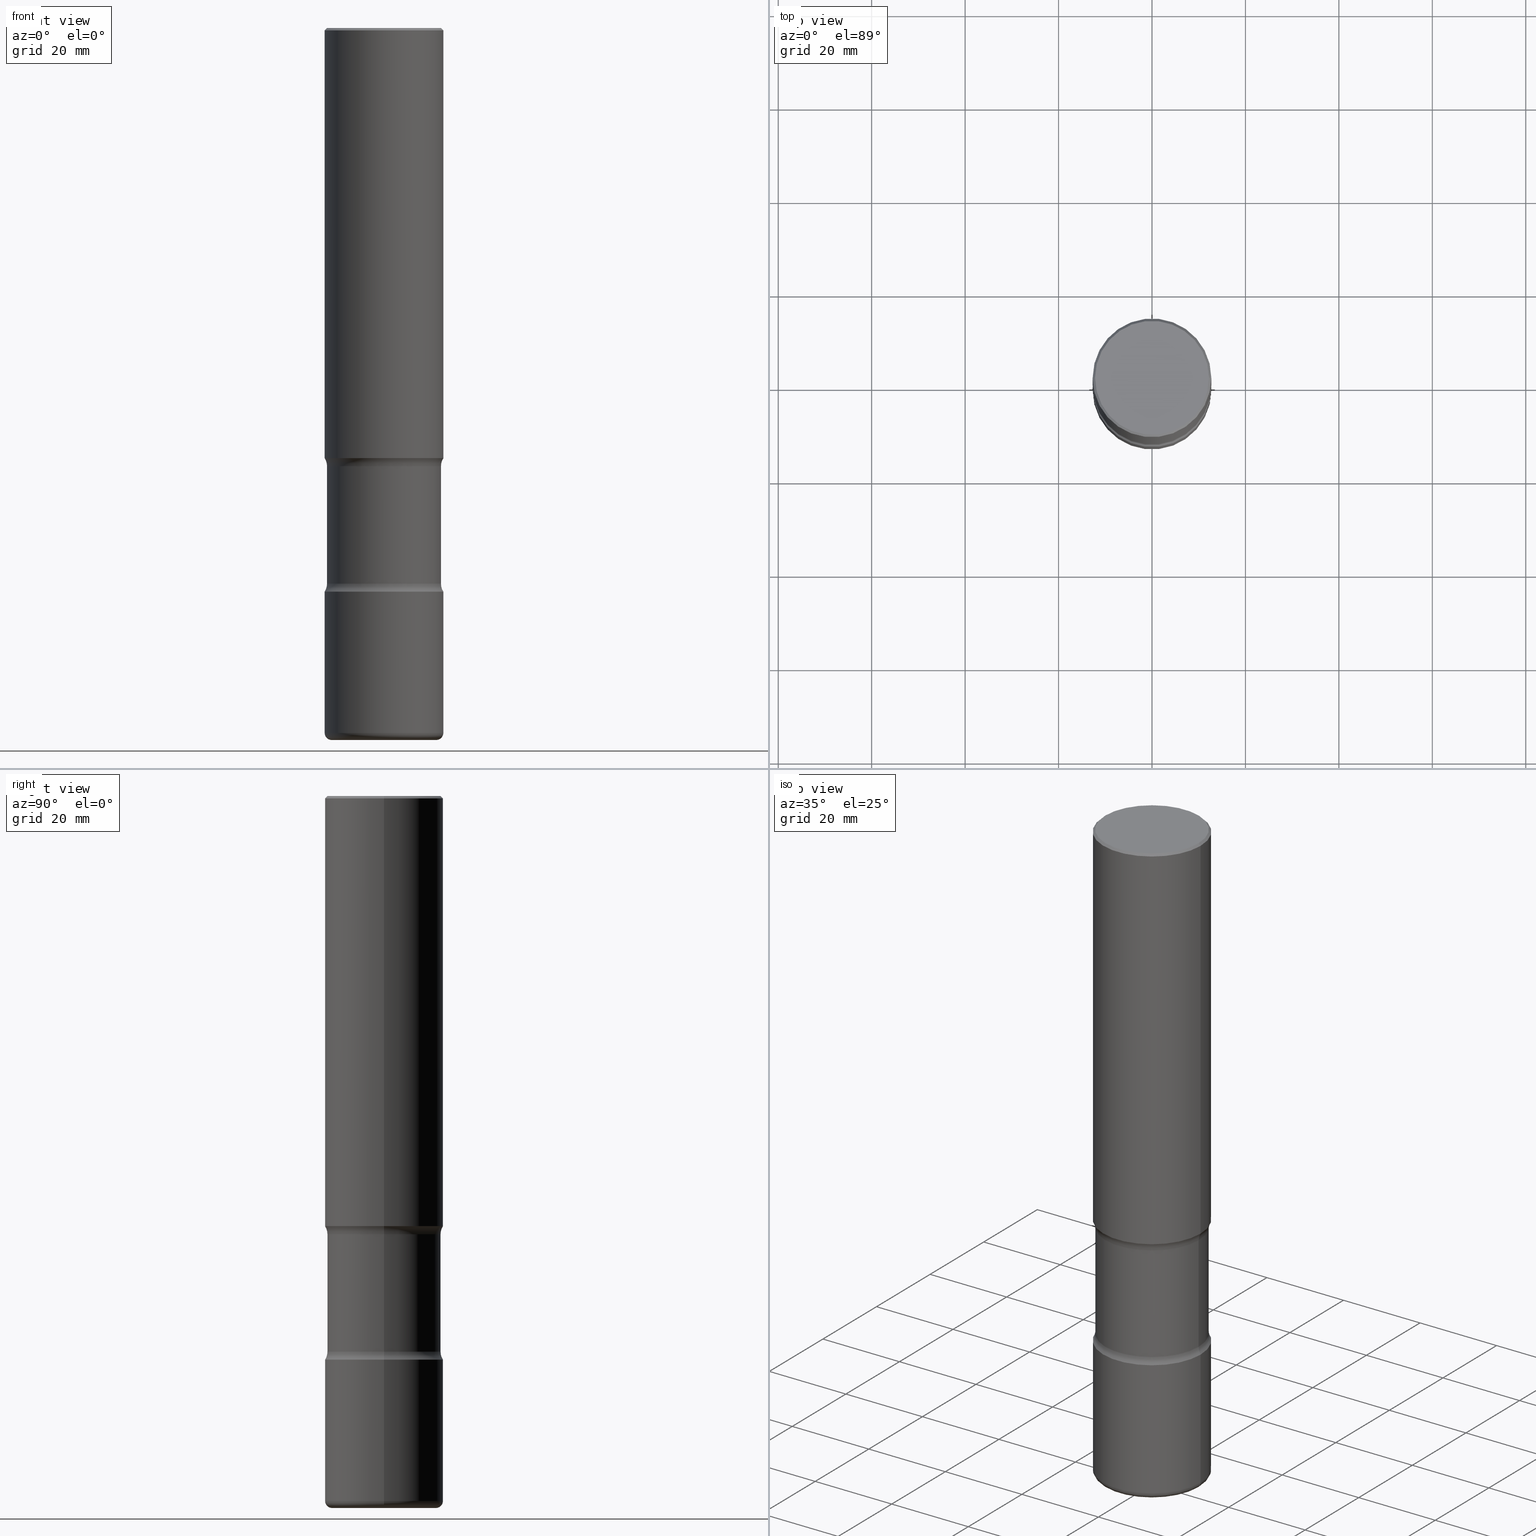
[diagram: canonical four-view strip — front | top / right | iso, engineering-drawing reading convention]
A machine part, canonical four-view strip (front | top / right | iso — engineering-drawing reading convention). The complete STEP part file that produces these views, byte-faithful:
ISO-10303-21;
HEADER;
FILE_DESCRIPTION (( 'STEP AP203' ),
    '1' );
FILE_NAME ('32868.STEP',
    '2023-03-11T07:09:18',
    ( '' ),
    ( '' ),
    'SwSTEP 2.0',
    'SolidWorks 2022',
    '' );
FILE_SCHEMA (( 'CONFIG_CONTROL_DESIGN' ));
ENDSEC;

DATA;
#1 = EDGE_LOOP ( 'NONE', ( #442, #177 ) ) ;
#2 = DIRECTION ( 'NONE',  ( -2.445468806185136877E-29, 3.491481338843145188E-15, 1.000000000000000000 ) ) ;
#3 = ADVANCED_FACE ( 'NONE', ( #9 ), #128, .F. ) ;
#4 = CARTESIAN_POINT ( 'NONE',  ( 4.890937612370299433E-31, -6.982962677686328587E-17, -0.02000000000000010797 ) ) ;
#5 = FACE_OUTER_BOUND ( 'NONE', #657, .T. ) ;
#6 = VECTOR ( 'NONE', #91, 39.37007874015748143 ) ;
#7 = AXIS2_PLACEMENT_3D ( 'NONE', #262, #574, #15 ) ;
#8 = ADVANCED_FACE ( 'NONE', ( #369 ), #194, .T. ) ;
#9 = FACE_OUTER_BOUND ( 'NONE', #359, .T. ) ;
#10 = CARTESIAN_POINT ( 'NONE',  ( 0.4799999999999999267, -1.969955465909476825E-14, -4.682176700168747985 ) ) ;
#11 = DESIGN_CONTEXT ( 'detailed design', #740, 'design' ) ;
#12 = PERSON_AND_ORGANIZATION ( #448, #115 ) ;
#13 = CARTESIAN_POINT ( 'NONE',  ( 8.864824422421122405E-29, -1.265661985330640574E-14, -3.625000000000000888 ) ) ;
#14 = CARTESIAN_POINT ( 'NONE',  ( -0.6049999999999998712, -8.668731219005799123E-15, -3.692823299831254236 ) ) ;
#15 = DIRECTION ( 'NONE',  ( -1.000000000000000000, 6.982962677686265922E-15, -4.876176775795935793E-29 ) ) ;
#16 = EDGE_CURVE ( 'NONE', #723, #236, #380, .T. ) ;
#17 = CIRCLE ( 'NONE', #129, 0.1250000000000000278 ) ;
#18 =( GEOMETRIC_REPRESENTATION_CONTEXT ( 3 ) GLOBAL_UNCERTAINTY_ASSIGNED_CONTEXT ( ( #528 ) ) GLOBAL_UNIT_ASSIGNED_CONTEXT ( ( #237, #188, #620 ) ) REPRESENTATION_CONTEXT ( 'NONE', 'WORKASPACE' ) );
#19 = DIRECTION ( 'NONE',  ( -2.445468806185136597E-29, 3.491481338843145583E-15, 1.000000000000000000 ) ) ;
#20 = CARTESIAN_POINT ( 'NONE',  ( 1.463950775264360242E-28, -2.090133719920167302E-14, -5.986380899898220420 ) ) ;
#21 = CARTESIAN_POINT ( 'NONE',  ( 1.145011706530952997E-28, -1.634773257380536149E-14, -4.682176700168747985 ) ) ;
#22 = CYLINDRICAL_SURFACE ( 'NONE', #405, 0.4799999999999998712 ) ;
#23 = FACE_OUTER_BOUND ( 'NONE', #138, .T. ) ;
#24 = CARTESIAN_POINT ( 'NONE',  ( 1.467281283711081958E-28, -2.094888803305887271E-14, -6.000000000000000888 ) ) ;
#25 = EDGE_CURVE ( 'NONE', #494, #723, #437, .T. ) ;
#26 = APPROVAL ( #148, 'UNSPECIFIED' ) ;
#27 = DIRECTION ( 'NONE',  ( 1.000000000000000000, -6.982962677686266711E-15, 4.876176775795935793E-29 ) ) ;
#28 = CARTESIAN_POINT ( 'NONE',  ( 0.5000000000000000000, -2.007601769834807675E-14, -4.750000000000000000 ) ) ;
#29 = EDGE_LOOP ( 'NONE', ( #607, #663, #432, #733 ) ) ;
#30 = CARTESIAN_POINT ( 'NONE',  ( 1.145011706530952997E-28, -1.634773257380536149E-14, -4.682176700168747985 ) ) ;
#31 = EDGE_CURVE ( 'NONE', #492, #473, #640, .T. ) ;
#32 = EDGE_LOOP ( 'NONE', ( #552, #567, #670, #726 ) ) ;
#33 = DIRECTION ( 'NONE',  ( 1.000000000000000000, -6.982962677686263555E-15, 4.883557194083111780E-29 ) ) ;
#34 = DIRECTION ( 'NONE',  ( 0.7071067811865464625, -7.319954787623252890E-15, -0.7071067811865485719 ) ) ;
#35 = EDGE_CURVE ( 'NONE', #75, #300, #134, .T. ) ;
#36 = ORIENTED_EDGE ( 'NONE', *, *, #518, .F. ) ;
#37 = ORIENTED_EDGE ( 'NONE', *, *, #238, .T. ) ;
#38 = CARTESIAN_POINT ( 'NONE',  ( 8.864824422421122405E-29, -1.265661985330640574E-14, -3.625000000000000888 ) ) ;
#39 = AXIS2_PLACEMENT_3D ( 'NONE', #418, #425, #358 ) ;
#40 = CARTESIAN_POINT ( 'NONE',  ( 1.161597682937940108E-28, -1.658453635950494339E-14, -4.750000000000000000 ) ) ;
#41 = CIRCLE ( 'NONE', #579, 0.4400000000000000022 ) ;
#42 = ORIENTED_EDGE ( 'NONE', *, *, #413, .F. ) ;
#43 = ORIENTED_EDGE ( 'NONE', *, *, #547, .T. ) ;
#44 =( LENGTH_UNIT ( ) NAMED_UNIT ( * ) SI_UNIT ( $, .METRE. ) );
#45 = CARTESIAN_POINT ( 'NONE',  ( 4.890937612370299433E-31, -6.982962677686328587E-17, -0.02000000000000010797 ) ) ;
#46 = EDGE_LOOP ( 'NONE', ( #299, #597, #252, #731 ) ) ;
#47 = EDGE_CURVE ( 'NONE', #728, #236, #622, .T. ) ;
#48 = ADVANCED_FACE ( 'NONE', ( #563 ), #289, .T. ) ;
#49 = EDGE_LOOP ( 'NONE', ( #141, #78 ) ) ;
#50 = DIRECTION ( 'NONE',  ( 2.445468806185136597E-29, -3.491481338843145583E-15, -1.000000000000000000 ) ) ;
#51 = CARTESIAN_POINT ( 'NONE',  ( 9.030684186490993510E-29, -1.289342363900598922E-14, -3.692823299831254236 ) ) ;
#52 = VERTEX_POINT ( 'NONE', #150 ) ;
#53 = ORIENTED_EDGE ( 'NONE', *, *, #374, .F. ) ;
#54 = FACE_OUTER_BOUND ( 'NONE', #535, .T. ) ;
#55 = AXIS2_PLACEMENT_3D ( 'NONE', #88, #220, #387 ) ;
#56 = EDGE_LOOP ( 'NONE', ( #240, #408, #789 ) ) ;
#57 = VECTOR ( 'NONE', #636, 39.37007874015748143 ) ;
#58 = CC_DESIGN_APPROVAL ( #26, ( #197 ) ) ;
#59 = EDGE_CURVE ( 'NONE', #658, #695, #266, .T. ) ;
#60 = PERSON_AND_ORGANIZATION_ROLE ( 'design_supplier' ) ;
#61 = CARTESIAN_POINT ( 'NONE',  ( 4.890937612370299433E-31, -6.982962677686328587E-17, -0.02000000000000010797 ) ) ;
#62 = CARTESIAN_POINT ( 'NONE',  ( 0.000000000000000000, 0.000000000000000000, 0.000000000000000000 ) ) ;
#63 = EDGE_CURVE ( 'NONE', #355, #236, #643, .T. ) ;
#64 = CARTESIAN_POINT ( 'NONE',  ( -0.4999999999999996114, 3.421651712066267296E-15, -0.02000000000000010797 ) ) ;
#65 = DIRECTION ( 'NONE',  ( -1.000000000000000000, 6.982962677686266711E-15, 0.000000000000000000 ) ) ;
#66 = ADVANCED_FACE ( 'NONE', ( #585 ), #22, .T. ) ;
#67 = ADVANCED_FACE ( 'NONE', ( #274 ), #588, .F. ) ;
#68 = DIRECTION ( 'NONE',  ( 0.000000000000000000, 0.000000000000000000, 1.000000000000000000 ) ) ;
#69 = ORIENTED_EDGE ( 'NONE', *, *, #321, .T. ) ;
#70 = DIRECTION ( 'NONE',  ( -6.982962677686266711E-15, -1.000000000000000000, 3.491481338843145583E-15 ) ) ;
#71 = AXIS2_PLACEMENT_3D ( 'NONE', #777, #222, #467 ) ;
#72 = AXIS2_PLACEMENT_3D ( 'NONE', #651, #98, #703 ) ;
#73 = AXIS2_PLACEMENT_3D ( 'NONE', #417, #665, #474 ) ;
#74 = CALENDAR_DATE ( 2023, 11, 3 ) ;
#75 = VERTEX_POINT ( 'NONE', #265 ) ;
#76 = DIRECTION ( 'NONE',  ( -2.445468806185136597E-29, 3.491481338843145583E-15, 1.000000000000000000 ) ) ;
#77 = PERSON_AND_ORGANIZATION_ROLE ( 'design_owner' ) ;
#78 = ORIENTED_EDGE ( 'NONE', *, *, #561, .T. ) ;
#79 = FACE_OUTER_BOUND ( 'NONE', #29, .T. ) ;
#80 = CARTESIAN_POINT ( 'NONE',  ( -0.4999999999999997780, 3.552713678800499352E-15, -2.459467545127452050E-29 ) ) ;
#81 = CARTESIAN_POINT ( 'NONE',  ( -0.5000000000000000000, -1.718668547392778504E-14, -5.940000000000000391 ) ) ;
#82 = DIRECTION ( 'NONE',  ( -1.000000000000000000, 6.982962677686266711E-15, -4.883557194083112901E-29 ) ) ;
#83 = AXIS2_PLACEMENT_3D ( 'NONE', #718, #801, #598 ) ;
#84 = AXIS2_PLACEMENT_3D ( 'NONE', #376, #511, #390 ) ;
#85 = AXIS2_PLACEMENT_3D ( 'NONE', #94, #221, #166 ) ;
#86 = CC_DESIGN_APPROVAL ( #162, ( #645 ) ) ;
#87 = CARTESIAN_POINT ( 'NONE',  ( -0.5000000000000000000, -9.165138514463270812E-15, -3.625000000000000888 ) ) ;
#88 = CARTESIAN_POINT ( 'NONE',  ( 1.145011706530952997E-28, -1.634773257380536149E-14, -4.682176700168747985 ) ) ;
#89 = MANIFOLD_SOLID_BREP ( 'Body-Move/Copy2[2]', #451 ) ;
#90 = CARTESIAN_POINT ( 'NONE',  ( 8.864824422421122405E-29, -1.265661985330640574E-14, -3.625000000000000888 ) ) ;
#91 = DIRECTION ( 'NONE',  ( -2.445468806185136877E-29, 3.491481338843145188E-15, 1.000000000000000000 ) ) ;
#92 = ADVANCED_FACE ( 'NONE', ( #95 ), #341, .F. ) ;
#93 = EDGE_CURVE ( 'NONE', #635, #482, #356, .T. ) ;
#94 = CARTESIAN_POINT ( 'NONE',  ( -0.6049999999999998712, -8.594640087657383223E-15, -3.692823299831254236 ) ) ;
#95 = FACE_OUTER_BOUND ( 'NONE', #529, .T. ) ;
#96 = AXIS2_PLACEMENT_3D ( 'NONE', #13, #328, #632 ) ;
#97 = AXIS2_PLACEMENT_3D ( 'NONE', #30, #409, #33 ) ;
#98 = DIRECTION ( 'NONE',  ( -2.445468806185136597E-29, 3.491481338843145583E-15, 1.000000000000000000 ) ) ;
#99 = FACE_OUTER_BOUND ( 'NONE', #363, .T. ) ;
#100 = CIRCLE ( 'NONE', #775, 0.1250000000000000278 ) ;
#101 = ORIENTED_EDGE ( 'NONE', *, *, #722, .T. ) ;
#102 = CARTESIAN_POINT ( 'NONE',  ( 9.030684186490993510E-29, -1.289342363900598922E-14, -3.692823299831254236 ) ) ;
#103 = EDGE_CURVE ( 'NONE', #473, #492, #318, .T. ) ;
#104 = DIRECTION ( 'NONE',  ( -2.445468806185136597E-29, 3.491481338843145583E-15, 1.000000000000000000 ) ) ;
#105 = ORIENTED_EDGE ( 'NONE', *, *, #248, .F. ) ;
#106 = ORIENTED_EDGE ( 'NONE', *, *, #214, .T. ) ;
#107 = CYLINDRICAL_SURFACE ( 'NONE', #231, 0.4799999999999998712 ) ;
#108 = CARTESIAN_POINT ( 'NONE',  ( -0.4999999999999996114, 3.421651712066267296E-15, -0.02000000000000010797 ) ) ;
#109 = VERTEX_POINT ( 'NONE', #333 ) ;
#110 = ORIENTED_EDGE ( 'NONE', *, *, #189, .F. ) ;
#111 = DIRECTION ( 'NONE',  ( -2.445468806185136597E-29, 3.491481338843145583E-15, 1.000000000000000000 ) ) ;
#112 = FACE_OUTER_BOUND ( 'NONE', #559, .T. ) ;
#113 = CONICAL_SURFACE ( 'NONE', #739, 1127.411546571505596, 1.535889741755010807 ) ;
#114 = EDGE_LOOP ( 'NONE', ( #601, #37 ) ) ;
#115 = ORGANIZATION ( 'UNSPECIFIED', 'UNSPECIFIED', '' ) ;
#116 = ORIENTED_EDGE ( 'NONE', *, *, #569, .T. ) ;
#117 = DIRECTION ( 'NONE',  ( -1.000000000000000000, 7.105427357600993970E-15, 0.000000000000000000 ) ) ;
#118 = PRODUCT ( '32868', '32868', '', ( #324 ) ) ;
#119 = ORIENTED_EDGE ( 'NONE', *, *, #47, .T. ) ;
#120 = DIRECTION ( 'NONE',  ( -1.000000000000000000, 6.982962677686266711E-15, -4.883557194083112901E-29 ) ) ;
#121 = DIRECTION ( 'NONE',  ( 7.105427357601001859E-15, 1.000000000000000000, -3.491481338843145583E-15 ) ) ;
#122 = ORIENTED_EDGE ( 'NONE', *, *, #238, .F. ) ;
#123 = EDGE_LOOP ( 'NONE', ( #69, #613 ) ) ;
#124 = DIRECTION ( 'NONE',  ( -6.982962677686266711E-15, -1.000000000000000000, 3.491481338843145583E-15 ) ) ;
#125 = ORIENTED_EDGE ( 'NONE', *, *, #304, .F. ) ;
#126 = ADVANCED_FACE ( 'NONE', ( #153 ), #510, .T. ) ;
#127 = LENGTH_MEASURE_WITH_UNIT ( LENGTH_MEASURE( 0.02539999999999999897 ), #44 );
#128 = PLANE ( 'NONE',  #96 ) ;
#129 = AXIS2_PLACEMENT_3D ( 'NONE', #483, #121, #230 ) ;
#130 = AXIS2_PLACEMENT_3D ( 'NONE', #746, #316, #452 ) ;
#131 = APPROVAL_PERSON_ORGANIZATION ( #502, #162, #209 ) ;
#132 = ADVANCED_FACE ( 'NONE', ( #527 ), #639, .T. ) ;
#133 = PERSON_AND_ORGANIZATION_ROLE ( 'classification_officer' ) ;
#134 = LINE ( 'NONE', #758, #226 ) ;
#135 = ADVANCED_FACE ( 'NONE', ( #515 ), #334, .F. ) ;
#136 = CARTESIAN_POINT ( 'NONE',  ( -0.4799999999999999267, -1.298447506143066159E-14, -4.682176700168747985 ) ) ;
#137 = APPROVAL_ROLE ( '' ) ;
#138 = EDGE_LOOP ( 'NONE', ( #298, #169, #364 ) ) ;
#139 = CARTESIAN_POINT ( 'NONE',  ( 9.030684186490993510E-29, -1.289342363900598922E-14, -3.692823299831254236 ) ) ;
#140 = PERSON_AND_ORGANIZATION ( #448, #115 ) ;
#141 = ORIENTED_EDGE ( 'NONE', *, *, #701, .T. ) ;
#142 = DIRECTION ( 'NONE',  ( -1.000000000000000000, 6.860497997771523674E-15, 0.000000000000000000 ) ) ;
#143 = VECTOR ( 'NONE', #205, 39.37007874015748143 ) ;
#144 = AXIS2_PLACEMENT_3D ( 'NONE', #714, #646, #460 ) ;
#145 = APPLICATION_PROTOCOL_DEFINITION ( 'international standard', 'config_control_design', 1994, #310 ) ;
#146 = CARTESIAN_POINT ( 'NONE',  ( 1.145011706530952997E-28, -1.634773257380536149E-14, -4.682176700168747985 ) ) ;
#147 = CARTESIAN_POINT ( 'NONE',  ( -3.131554243005659264E-46, 4.471029511141341874E-32, 1.280553747030123384E-17 ) ) ;
#148 = APPROVAL_STATUS ( 'not_yet_approved' ) ;
#149 = DIRECTION ( 'NONE',  ( -1.000000000000000000, 6.982962677686266711E-15, 0.000000000000000000 ) ) ;
#150 = CARTESIAN_POINT ( 'NONE',  ( 0.5000000000000000000, -1.608686885219216995E-14, -3.625000000000000888 ) ) ;
#151 = EDGE_CURVE ( 'NONE', #164, #661, #784, .T. ) ;
#152 = DIRECTION ( 'NONE',  ( 1.000000000000000000, -6.982962677686262766E-15, 0.000000000000000000 ) ) ;
#153 = FACE_OUTER_BOUND ( 'NONE', #543, .T. ) ;
#154 = AXIS2_PLACEMENT_3D ( 'NONE', #606, #780, #403 ) ;
#155 = EDGE_CURVE ( 'NONE', #480, #489, #330, .T. ) ;
#156 = DIRECTION ( 'NONE',  ( -2.445468806185136597E-29, 3.491481338843145583E-15, 1.000000000000000000 ) ) ;
#157 = CARTESIAN_POINT ( 'NONE',  ( 1.062394972252853083E-27, 1.101798156628259290E-13, -6.000000000000001776 ) ) ;
#158 = DIRECTION ( 'NONE',  ( 2.445468806185136877E-29, -3.491481338843145188E-15, -1.000000000000000000 ) ) ;
#159 = DIRECTION ( 'NONE',  ( 1.000000000000000000, -6.982962677686270655E-15, 4.883557194083114583E-29 ) ) ;
#160 = CYLINDRICAL_SURFACE ( 'NONE', #228, 0.4999999999999997780 ) ;
#161 = CARTESIAN_POINT ( 'NONE',  ( 0.4999999999999996114, -3.500078625662626318E-15, -0.02000000000000010797 ) ) ;
#162 = APPROVAL ( #449, 'UNSPECIFIED' ) ;
#163 = AXIS2_PLACEMENT_3D ( 'NONE', #51, #171, #302 ) ;
#164 = VERTEX_POINT ( 'NONE', #28 ) ;
#165 = AXIS2_PLACEMENT_3D ( 'NONE', #399, #649, #463 ) ;
#166 = DIRECTION ( 'NONE',  ( -1.000000000000000000, 7.105427357601001859E-15, 0.000000000000000000 ) ) ;
#167 = CARTESIAN_POINT ( 'NONE',  ( 1.161597682937940108E-28, -1.658453635950494339E-14, -4.750000000000000000 ) ) ;
#168 = ORIENTED_EDGE ( 'NONE', *, *, #496, .F. ) ;
#169 = ORIENTED_EDGE ( 'NONE', *, *, #628, .T. ) ;
#170 = DIRECTION ( 'NONE',  ( -2.445468806185136597E-29, 3.491481338843145583E-15, 1.000000000000000000 ) ) ;
#171 = DIRECTION ( 'NONE',  ( -2.445468806185136597E-29, 3.491481338843145583E-15, 1.000000000000000000 ) ) ;
#172 = ORIENTED_EDGE ( 'NONE', *, *, #214, .F. ) ;
#173 = CARTESIAN_POINT ( 'NONE',  ( -0.4400000000000000022, -1.761301111538384237E-14, -5.940000000000000391 ) ) ;
#174 = ORIENTED_EDGE ( 'NONE', *, *, #410, .T. ) ;
#175 = CARTESIAN_POINT ( 'NONE',  ( -0.4799999999999995381, 3.386736898677836041E-15, 1.280553747027767124E-17 ) ) ;
#176 = DIRECTION ( 'NONE',  ( -6.982962677686266711E-15, -1.000000000000000000, 3.491481338843145583E-15 ) ) ;
#177 = ORIENTED_EDGE ( 'NONE', *, *, #404, .T. ) ;
#178 = ORIENTED_EDGE ( 'NONE', *, *, #569, .F. ) ;
#179 = ADVANCED_FACE ( 'NONE', ( #768, #708 ), #770, .F. ) ;
#180 = CARTESIAN_POINT ( 'NONE',  ( 8.864824422421122405E-29, -1.265661985330640574E-14, -3.625000000000000888 ) ) ;
#181 = AXIS2_PLACEMENT_3D ( 'NONE', #712, #398, #82 ) ;
#182 = DIRECTION ( 'NONE',  ( 2.445468806185136597E-29, -3.491481338843145583E-15, -1.000000000000000000 ) ) ;
#183 = TOROIDAL_SURFACE ( 'NONE', #277, 0.6049999999999998712, 0.1250000000000001110 ) ;
#184 = CIRCLE ( 'NONE', #311, 0.5000000000000000000 ) ;
#185 = EDGE_CURVE ( 'NONE', #109, #489, #435, .T. ) ;
#186 = ORIENTED_EDGE ( 'NONE', *, *, #16, .T. ) ;
#187 = ORIENTED_EDGE ( 'NONE', *, *, #235, .T. ) ;
#188 =( NAMED_UNIT ( * ) PLANE_ANGLE_UNIT ( ) SI_UNIT ( $, .RADIAN. ) );
#189 = EDGE_CURVE ( 'NONE', #695, #489, #433, .T. ) ;
#190 = ORIENTED_EDGE ( 'NONE', *, *, #443, .T. ) ;
#191 = EDGE_LOOP ( 'NONE', ( #503, #593, #741, #250 ) ) ;
#192 = EDGE_LOOP ( 'NONE', ( #556, #116, #174, #53 ) ) ;
#193 = DIRECTION ( 'NONE',  ( -2.445468806185136597E-29, 3.491481338843145583E-15, 1.000000000000000000 ) ) ;
#194 = TOROIDAL_SURFACE ( 'NONE', #207, 0.4400000000000000022, 0.05999999999999994227 ) ;
#195 = FACE_OUTER_BOUND ( 'NONE', #450, .T. ) ;
#196 = VECTOR ( 'NONE', #158, 39.37007874015748143 ) ;
#197 = PRODUCT_DEFINITION_FORMATION_WITH_SPECIFIED_SOURCE ( 'ANY', '', #118, .NOT_KNOWN. ) ;
#198 = CC_DESIGN_APPROVAL ( #497, ( #603 ) ) ;
#199 = APPROVAL_STATUS ( 'not_yet_approved' ) ;
#200 = DIRECTION ( 'NONE',  ( 1.000000000000000000, -6.982962677686265133E-15, 0.000000000000000000 ) ) ;
#201 = CARTESIAN_POINT ( 'NONE',  ( 0.5000000000000000000, -1.614810119214953752E-14, -3.625000000000000888 ) ) ;
#202 = CARTESIAN_POINT ( 'NONE',  ( 1.452608470873971255E-28, -2.073939915272828597E-14, -5.940000000000000391 ) ) ;
#203 = DIRECTION ( 'NONE',  ( -2.445468806185136597E-29, 3.491481338843145583E-15, 1.000000000000000000 ) ) ;
#204 = EDGE_CURVE ( 'NONE', #489, #695, #786, .T. ) ;
#205 = DIRECTION ( 'NONE',  ( -0.7071067811865464625, 2.468850131082245622E-15, -0.7071067811865485719 ) ) ;
#206 = CYLINDRICAL_SURFACE ( 'NONE', #804, 0.5000000000000000000 ) ;
#207 = AXIS2_PLACEMENT_3D ( 'NONE', #202, #506, #446 ) ;
#208 = CIRCLE ( 'NONE', #772, 0.4799999999999995381 ) ;
#209 = APPROVAL_ROLE ( '' ) ;
#210 = DIRECTION ( 'NONE',  ( 1.000000000000000000, -6.982962677686266711E-15, 4.876036955247133888E-29 ) ) ;
#211 = CARTESIAN_POINT ( 'NONE',  ( 1.452608470873971255E-28, -2.073939915272828597E-14, -5.940000000000000391 ) ) ;
#212 = DIRECTION ( 'NONE',  ( -2.445468806185136597E-29, 3.491481338843145583E-15, 1.000000000000000000 ) ) ;
#213 = DIRECTION ( 'NONE',  ( -1.000000000000000000, 6.982962677686266711E-15, -4.883557194083112901E-29 ) ) ;
#214 = EDGE_CURVE ( 'NONE', #799, #723, #592, .T. ) ;
#215 = CARTESIAN_POINT ( 'NONE',  ( 0.4799999999999998712, -2.419437623813200892E-14, -5.986380899898220420 ) ) ;
#216 = DIRECTION ( 'NONE',  ( -1.000000000000000000, 6.982962677686269866E-15, 0.000000000000000000 ) ) ;
#217 = AXIS2_PLACEMENT_3D ( 'NONE', #391, #650, #522 ) ;
#218 = AXIS2_PLACEMENT_3D ( 'NONE', #173, #662, #117 ) ;
#219 = DIRECTION ( 'NONE',  ( -2.445468806185136877E-29, 3.491481338843145188E-15, 1.000000000000000000 ) ) ;
#220 = DIRECTION ( 'NONE',  ( -2.445468806185136597E-29, 3.491481338843145583E-15, 1.000000000000000000 ) ) ;
#221 = DIRECTION ( 'NONE',  ( 7.105427357601001859E-15, 1.000000000000000000, -3.491481338843145583E-15 ) ) ;
#222 = DIRECTION ( 'NONE',  ( -6.982962677686266711E-15, -1.000000000000000000, 3.491481338843145583E-15 ) ) ;
#223 = ORIENTED_EDGE ( 'NONE', *, *, #666, .T. ) ;
#224 = DIRECTION ( 'NONE',  ( 1.000000000000000000, -6.982962677686270655E-15, 0.000000000000000000 ) ) ;
#225 = CARTESIAN_POINT ( 'NONE',  ( 0.4799999999999998157, -1.613666576506424596E-14, -3.692823299831254236 ) ) ;
#226 = VECTOR ( 'NONE', #688, 39.37007874015748143 ) ;
#227 = ORIENTED_EDGE ( 'NONE', *, *, #47, .F. ) ;
#228 = AXIS2_PLACEMENT_3D ( 'NONE', #586, #397, #27 ) ;
#229 = DIRECTION ( 'NONE',  ( 1.000000000000000000, -6.982962677686266711E-15, 0.000000000000000000 ) ) ;
#230 = DIRECTION ( 'NONE',  ( -1.000000000000000000, 7.105427357600994759E-15, 0.000000000000000000 ) ) ;
#231 = AXIS2_PLACEMENT_3D ( 'NONE', #286, #353, #800 ) ;
#232 = VERTEX_POINT ( 'NONE', #612 ) ;
#233 = DIRECTION ( 'NONE',  ( -1.000000000000000000, 6.982962677686266711E-15, 0.000000000000000000 ) ) ;
#234 = ORIENTED_EDGE ( 'NONE', *, *, #571, .F. ) ;
#235 = EDGE_CURVE ( 'NONE', #236, #723, #394, .T. ) ;
#236 = VERTEX_POINT ( 'NONE', #108 ) ;
#237 =( CONVERSION_BASED_UNIT ( 'INCH', #127 ) LENGTH_UNIT ( ) NAMED_UNIT ( #766 ) );
#238 = EDGE_CURVE ( 'NONE', #661, #164, #242, .T. ) ;
#239 = DIRECTION ( 'NONE',  ( -2.445468806185136597E-29, 3.491481338843145583E-15, 1.000000000000000000 ) ) ;
#240 = ORIENTED_EDGE ( 'NONE', *, *, #628, .F. ) ;
#241 = DIRECTION ( 'NONE',  ( 1.000000000000000000, -6.982962677686266711E-15, 0.000000000000000000 ) ) ;
#242 = CIRCLE ( 'NONE', #705, 0.5000000000000000000 ) ;
#243 = DIRECTION ( 'NONE',  ( -2.445468806185136597E-29, 3.491481338843145583E-15, 1.000000000000000000 ) ) ;
#244 = VECTOR ( 'NONE', #343, 39.37007874015748143 ) ;
#245 = CC_DESIGN_SECURITY_CLASSIFICATION ( #603, ( #197 ) ) ;
#246 = EDGE_LOOP ( 'NONE', ( #249, #626, #303, #261 ) ) ;
#247 = CARTESIAN_POINT ( 'NONE',  ( -0.5000000000000000000, -9.103906174505904815E-15, -3.625000000000000888 ) ) ;
#248 = EDGE_CURVE ( 'NONE', #488, #717, #498, .T. ) ;
#249 = ORIENTED_EDGE ( 'NONE', *, *, #31, .F. ) ;
#250 = ORIENTED_EDGE ( 'NONE', *, *, #185, .F. ) ;
#251 = APPLICATION_PROTOCOL_DEFINITION ( 'international standard', 'config_control_design', 1994, #740 ) ;
#252 = ORIENTED_EDGE ( 'NONE', *, *, #713, .T. ) ;
#253 = APPROVAL_DATE_TIME ( #744, #162 ) ;
#254 = DIRECTION ( 'NONE',  ( -2.445468806185136597E-29, 3.491481338843145583E-15, 1.000000000000000000 ) ) ;
#255 = CIRCLE ( 'NONE', #629, 0.05999999999999997696 ) ;
#256 = CARTESIAN_POINT ( 'NONE',  ( 1.463950775264360242E-28, -2.090133719920167302E-14, -5.986380899898220420 ) ) ;
#257 = AXIS2_PLACEMENT_3D ( 'NONE', #447, #689, #142 ) ;
#258 = ORIENTED_EDGE ( 'NONE', *, *, #185, .T. ) ;
#259 = FACE_OUTER_BOUND ( 'NONE', #56, .T. ) ;
#260 = APPROVAL_ROLE ( '' ) ;
#261 = ORIENTED_EDGE ( 'NONE', *, *, #713, .F. ) ;
#262 = CARTESIAN_POINT ( 'NONE',  ( 3.351822085289404392E-15, 0.4799999999999995381, -1.669508273909557670E-15 ) ) ;
#263 = DIRECTION ( 'NONE',  ( 1.000000000000000000, 0.000000000000000000, 0.000000000000000000 ) ) ;
#264 = CARTESIAN_POINT ( 'NONE',  ( 9.030684186490993510E-29, -1.289342363900598922E-14, -3.692823299831254236 ) ) ;
#265 = CARTESIAN_POINT ( 'NONE',  ( 1.463950775264360242E-28, -2.090133719920167302E-14, -5.986380899898220420 ) ) ;
#266 = CIRCLE ( 'NONE', #217, 0.1250000000000000278 ) ;
#267 = AXIS2_PLACEMENT_3D ( 'NONE', #14, #70, #507 ) ;
#268 = TOROIDAL_SURFACE ( 'NONE', #580, 0.6049999999999999822, 0.1250000000000000278 ) ;
#269 = PLANE ( 'NONE',  #7 ) ;
#270 = DIRECTION ( 'NONE',  ( -2.445468806185136597E-29, 3.491481338843145583E-15, 1.000000000000000000 ) ) ;
#271 = ADVANCED_FACE ( 'NONE', ( #99 ), #669, .T. ) ;
#272 = EDGE_CURVE ( 'NONE', #492, #232, #17, .T. ) ;
#273 = DIRECTION ( 'NONE',  ( 2.445468806185136597E-29, -3.491481338843145583E-15, -1.000000000000000000 ) ) ;
#274 = FACE_OUTER_BOUND ( 'NONE', #732, .T. ) ;
#275 = DIRECTION ( 'NONE',  ( 2.445468806185136877E-29, -3.491481338843145188E-15, -1.000000000000000000 ) ) ;
#276 = CIRCLE ( 'NONE', #487, 0.5000000000000000000 ) ;
#277 = AXIS2_PLACEMENT_3D ( 'NONE', #102, #212, #461 ) ;
#278 = AXIS2_PLACEMENT_3D ( 'NONE', #424, #792, #478 ) ;
#279 = CARTESIAN_POINT ( 'NONE',  ( -0.4799999999999998712, -9.246014721657926556E-15, -3.625000000000000888 ) ) ;
#280 = CC_DESIGN_PERSON_AND_ORGANIZATION_ASSIGNMENT ( #384, #77, ( #118 ) ) ;
#281 = DIRECTION ( 'NONE',  ( 1.000000000000000000, -6.982962677686265922E-15, 4.876176775795935793E-29 ) ) ;
#282 = ORIENTED_EDGE ( 'NONE', *, *, #93, .F. ) ;
#283 = CARTESIAN_POINT ( 'NONE',  ( 1.452608470873971255E-28, -2.073939915272828597E-14, -5.940000000000000391 ) ) ;
#284 = CARTESIAN_POINT ( 'NONE',  ( 1.161597682937940108E-28, -1.658453635950494339E-14, -4.750000000000000000 ) ) ;
#285 = VERTEX_POINT ( 'NONE', #225 ) ;
#286 = CARTESIAN_POINT ( 'NONE',  ( 8.864824422421122405E-29, -1.265661985330640574E-14, -3.625000000000000888 ) ) ;
#287 = ORIENTED_EDGE ( 'NONE', *, *, #295, .F. ) ;
#288 = CLOSED_SHELL ( 'NONE', ( #401, #664, #755, #67, #92, #557, #135, #66 ) ) ;
#289 = CONICAL_SURFACE ( 'NONE', #471, 0.4999999999999996114, 0.7853981633974468357 ) ;
#290 = AXIS2_PLACEMENT_3D ( 'NONE', #90, #340, #584 ) ;
#291 = ORIENTED_EDGE ( 'NONE', *, *, #377, .T. ) ;
#292 = APPROVAL_PERSON_ORGANIZATION ( #313, #497, #137 ) ;
#293 = DIRECTION ( 'NONE',  ( -2.445468806185136597E-29, 3.491481338843145583E-15, 1.000000000000000000 ) ) ;
#294 = EDGE_LOOP ( 'NONE', ( #234, #491, #675, #110 ) ) ;
#295 = EDGE_CURVE ( 'NONE', #419, #232, #600, .T. ) ;
#296 = ORIENTED_EDGE ( 'NONE', *, *, #204, .T. ) ;
#297 = FACE_OUTER_BOUND ( 'NONE', #616, .T. ) ;
#298 = ORIENTED_EDGE ( 'NONE', *, *, #35, .F. ) ;
#299 = ORIENTED_EDGE ( 'NONE', *, *, #272, .F. ) ;
#300 = VERTEX_POINT ( 'NONE', #534 ) ;
#301 = CARTESIAN_POINT ( 'NONE',  ( 0.5000000000000000000, -2.423088049157142248E-14, -5.940000000000000391 ) ) ;
#302 = DIRECTION ( 'NONE',  ( 1.000000000000000000, -6.982962677686266711E-15, 0.000000000000000000 ) ) ;
#303 = ORIENTED_EDGE ( 'NONE', *, *, #496, .T. ) ;
#304 = EDGE_CURVE ( 'NONE', #482, #717, #255, .T. ) ;
#305 = ORIENTED_EDGE ( 'NONE', *, *, #426, .F. ) ;
#306 = FACE_OUTER_BOUND ( 'NONE', #486, .T. ) ;
#307 = CIRCLE ( 'NONE', #163, 0.4799999999999998157 ) ;
#308 = CIRCLE ( 'NONE', #84, 0.5000000000000000000 ) ;
#309 = ADVANCED_FACE ( 'NONE', ( #112 ), #736, .T. ) ;
#310 = APPLICATION_CONTEXT ( 'configuration controlled 3d designs of mechanical parts and assemblies' ) ;
#311 = AXIS2_PLACEMENT_3D ( 'NONE', #38, #293, #241 ) ;
#312 = ORIENTED_EDGE ( 'NONE', *, *, #455, .T. ) ;
#313 = PERSON_AND_ORGANIZATION ( #448, #115 ) ;
#314 = DIRECTION ( 'NONE',  ( 1.000000000000000000, -6.982962677686266711E-15, 0.000000000000000000 ) ) ;
#315 = ORIENTED_EDGE ( 'NONE', *, *, #547, .F. ) ;
#316 = DIRECTION ( 'NONE',  ( -2.445468806185136597E-29, 3.491481338843145583E-15, 1.000000000000000000 ) ) ;
#317 = VERTEX_POINT ( 'NONE', #362 ) ;
#318 = CIRCLE ( 'NONE', #55, 0.4799999999999999267 ) ;
#319 = CARTESIAN_POINT ( 'NONE',  ( -0.4799999999999998157, -9.541601553716582462E-15, -3.692823299831254236 ) ) ;
#320 = CONICAL_SURFACE ( 'NONE', #706, 1127.411546571505596, 1.535889741755010807 ) ;
#321 = EDGE_CURVE ( 'NONE', #109, #658, #276, .T. ) ;
#322 = VECTOR ( 'NONE', #734, 39.37007874015748143 ) ;
#323 = CC_DESIGN_DATE_AND_TIME_ASSIGNMENT ( #686, #692, ( #645 ) ) ;
#324 = MECHANICAL_CONTEXT ( 'NONE', #310, 'mechanical' ) ;
#325 = ORIENTED_EDGE ( 'NONE', *, *, #59, .F. ) ;
#326 = CARTESIAN_POINT ( 'NONE',  ( 0.5000000000000000000, -3.491481338843133355E-15, 2.438088387897967896E-29 ) ) ;
#327 = SECURITY_CLASSIFICATION_LEVEL ( 'unclassified' ) ;
#328 = DIRECTION ( 'NONE',  ( -2.438088387897960049E-29, 3.491481338843145188E-15, 1.000000000000000000 ) ) ;
#329 = CARTESIAN_POINT ( 'NONE',  ( 0.000000000000000000, 0.000000000000000000, 0.000000000000000000 ) ) ;
#330 = LINE ( 'NONE', #344, #748 ) ;
#331 = EDGE_CURVE ( 'NONE', #411, #317, #307, .T. ) ;
#332 = CARTESIAN_POINT ( 'NONE',  ( 1.467281283711082406E-28, -2.094888803305887902E-14, -6.000000000000001776 ) ) ;
#333 = CARTESIAN_POINT ( 'NONE',  ( -0.5000000000000000000, -1.309305502066180846E-14, -4.750000000000000000 ) ) ;
#334 = TOROIDAL_SURFACE ( 'NONE', #181, 0.6049999999999999822, 0.1250000000000000278 ) ;
#335 = CIRCLE ( 'NONE', #72, 0.4799999999999995381 ) ;
#336 = AXIS2_PLACEMENT_3D ( 'NONE', #724, #111, #229 ) ;
#337 = CARTESIAN_POINT ( 'NONE',  ( -0.4400000000000000022, -1.750459273482111023E-14, -6.000000000000000888 ) ) ;
#338 = CARTESIAN_POINT ( 'NONE',  ( 8.864824422421122405E-29, -1.265661985330640574E-14, -3.625000000000000888 ) ) ;
#339 = MANIFOLD_SOLID_BREP ( 'Body-Move/Copy2[3]', #747 ) ;
#340 = DIRECTION ( 'NONE',  ( 2.445468806185136597E-29, -3.491481338843145583E-15, -1.000000000000000000 ) ) ;
#341 = PLANE ( 'NONE',  #676 ) ;
#342 = ADVANCED_FACE ( 'NONE', ( #414 ), #545, .F. ) ;
#343 = DIRECTION ( 'NONE',  ( -2.445468806185136877E-29, 3.491481338843145188E-15, 1.000000000000000000 ) ) ;
#344 = CARTESIAN_POINT ( 'NONE',  ( -0.4799999999999998712, -1.754951511391226626E-14, -5.986380899898220420 ) ) ;
#345 = AXIS2_PLACEMENT_3D ( 'NONE', #40, #595, #730 ) ;
#346 = CIRCLE ( 'NONE', #218, 0.05999999999999997696 ) ;
#347 = ADVANCED_FACE ( 'NONE', ( #479 ), #382, .F. ) ;
#348 = ORIENTED_EDGE ( 'NONE', *, *, #204, .F. ) ;
#349 = FACE_OUTER_BOUND ( 'NONE', #246, .T. ) ;
#350 = ORIENTED_EDGE ( 'NONE', *, *, #443, .F. ) ;
#351 = DIRECTION ( 'NONE',  ( 1.000000000000000000, -6.982962677686265922E-15, 4.876176775795935793E-29 ) ) ;
#352 = ORIENTED_EDGE ( 'NONE', *, *, #701, .F. ) ;
#353 = DIRECTION ( 'NONE',  ( -2.445468806185136597E-29, 3.491481338843145583E-15, 1.000000000000000000 ) ) ;
#354 = DIRECTION ( 'NONE',  ( -1.000000000000000000, 6.982962677686265922E-15, -4.876176775795935793E-29 ) ) ;
#355 = VERTEX_POINT ( 'NONE', #396 ) ;
#356 = CIRCLE ( 'NONE', #652, 0.4400000000000000022 ) ;
#357 = CARTESIAN_POINT ( 'NONE',  ( 1.145011706530952997E-28, -1.634773257380536149E-14, -4.682176700168747985 ) ) ;
#358 = DIRECTION ( 'NONE',  ( 1.000000000000000000, -6.982962677686266711E-15, 0.000000000000000000 ) ) ;
#359 = EDGE_LOOP ( 'NONE', ( #546, #782 ) ) ;
#360 = EDGE_LOOP ( 'NONE', ( #178, #352, #484, #477 ) ) ;
#361 = CARTESIAN_POINT ( 'NONE',  ( 0.4799999999999999267, -1.982777848556320013E-14, -4.682176700168747985 ) ) ;
#362 = CARTESIAN_POINT ( 'NONE',  ( -0.4799999999999998157, -9.293362340931705846E-15, -3.692823299831254236 ) ) ;
#363 = EDGE_LOOP ( 'NONE', ( #287, #168 ) ) ;
#364 = ORIENTED_EDGE ( 'NONE', *, *, #404, .F. ) ;
#365 = CARTESIAN_POINT ( 'NONE',  ( 0.000000000000000000, 0.000000000000000000, 0.000000000000000000 ) ) ;
#366 = ORIENTED_EDGE ( 'NONE', *, *, #304, .T. ) ;
#367 = AXIS2_PLACEMENT_3D ( 'NONE', #157, #575, #281 ) ;
#368 = CIRCLE ( 'NONE', #257, 0.1250000000000001110 ) ;
#369 = FACE_OUTER_BOUND ( 'NONE', #532, .T. ) ;
#370 = PERSON_AND_ORGANIZATION_ROLE ( 'creator' ) ;
#371 = ORIENTED_EDGE ( 'NONE', *, *, #508, .T. ) ;
#372 = CARTESIAN_POINT ( 'NONE',  ( 0.5000000000000000000, -1.614810119214954068E-14, -3.625000000000000888 ) ) ;
#373 = COORDINATED_UNIVERSAL_TIME_OFFSET ( 5, 0, .BEHIND. ) ;
#374 = EDGE_CURVE ( 'NONE', #416, #411, #499, .T. ) ;
#375 = ORIENTED_EDGE ( 'NONE', *, *, #248, .T. ) ;
#376 = CARTESIAN_POINT ( 'NONE',  ( 8.864824422421122405E-29, -1.265661985330640574E-14, -3.625000000000000888 ) ) ;
#377 = EDGE_CURVE ( 'NONE', #635, #488, #346, .T. ) ;
#378 = DATE_AND_TIME ( #570, #525 ) ;
#379 = ORIENTED_EDGE ( 'NONE', *, *, #331, .F. ) ;
#380 = CIRCLE ( 'NONE', #565, 0.4999999999999996114 ) ;
#381 = CARTESIAN_POINT ( 'NONE',  ( 1.467281283711081958E-28, -2.094888803305887271E-14, -6.000000000000000888 ) ) ;
#382 = TOROIDAL_SURFACE ( 'NONE', #619, 0.6049999999999998712, 0.1250000000000001110 ) ;
#383 = LOCAL_TIME ( 2, 9, 18.00000000000000000, #440 ) ;
#384 = PERSON_AND_ORGANIZATION ( #448, #115 ) ;
#385 = ORIENTED_EDGE ( 'NONE', *, *, #426, .T. ) ;
#386 = CARTESIAN_POINT ( 'NONE',  ( 0.000000000000000000, 0.000000000000000000, 0.000000000000000000 ) ) ;
#387 = DIRECTION ( 'NONE',  ( 1.000000000000000000, -6.982962677686265133E-15, 0.000000000000000000 ) ) ;
#388 = ADVANCED_FACE ( 'NONE', ( #297 ), #206, .T. ) ;
#389 = PRODUCT_RELATED_PRODUCT_CATEGORY ( 'detail', '', ( #118 ) ) ;
#390 = DIRECTION ( 'NONE',  ( -1.000000000000000000, 6.982962677686266711E-15, 0.000000000000000000 ) ) ;
#391 = CARTESIAN_POINT ( 'NONE',  ( 0.6049999999999999822, -2.049833386245713884E-14, -4.682176700168747985 ) ) ;
#392 = LINE ( 'NONE', #594, #749 ) ;
#393 = DIRECTION ( 'NONE',  ( -2.445468806185136597E-29, 3.491481338843145583E-15, 1.000000000000000000 ) ) ;
#394 = CIRCLE ( 'NONE', #39, 0.4999999999999996114 ) ;
#395 = AXIS2_PLACEMENT_3D ( 'NONE', #329, #76, #633 ) ;
#396 = CARTESIAN_POINT ( 'NONE',  ( -0.5000000000000000000, -2.810511061241131620E-15, -3.625000000000000888 ) ) ;
#397 = DIRECTION ( 'NONE',  ( -2.445468806185136597E-29, 3.491481338843145583E-15, 1.000000000000000000 ) ) ;
#398 = DIRECTION ( 'NONE',  ( 2.445468806185136597E-29, -3.491481338843145583E-15, -1.000000000000000000 ) ) ;
#399 = CARTESIAN_POINT ( 'NONE',  ( 8.864824422421122405E-29, -1.265661985330640574E-14, -3.625000000000000888 ) ) ;
#400 = DIRECTION ( 'NONE',  ( 1.000000000000000000, -6.982962677686265922E-15, 0.000000000000000000 ) ) ;
#401 = ADVANCED_FACE ( 'NONE', ( #5 ), #759, .T. ) ;
#402 = LINE ( 'NONE', #279, #244 ) ;
#403 = DIRECTION ( 'NONE',  ( -1.000000000000000000, 6.982962677686265922E-15, -4.876176775795935793E-29 ) ) ;
#404 = EDGE_CURVE ( 'NONE', #300, #754, #602, .T. ) ;
#405 = AXIS2_PLACEMENT_3D ( 'NONE', #20, #464, #216 ) ;
#406 = CIRCLE ( 'NONE', #165, 0.5000000000000000000 ) ;
#407 = APPROVAL_PERSON_ORGANIZATION ( #509, #26, #260 ) ;
#408 = ORIENTED_EDGE ( 'NONE', *, *, #35, .T. ) ;
#409 = DIRECTION ( 'NONE',  ( -2.445468806185136597E-29, 3.491481338843145583E-15, 1.000000000000000000 ) ) ;
#410 = EDGE_CURVE ( 'NONE', #317, #411, #555, .T. ) ;
#411 = VERTEX_POINT ( 'NONE', #568 ) ;
#412 = CYLINDRICAL_SURFACE ( 'NONE', #644, 0.5000000000000000000 ) ;
#413 = EDGE_CURVE ( 'NONE', #728, #799, #208, .T. ) ;
#414 = FACE_OUTER_BOUND ( 'NONE', #114, .T. ) ;
#415 = ORIENTED_EDGE ( 'NONE', *, *, #722, .F. ) ;
#416 = VERTEX_POINT ( 'NONE', #201 ) ;
#417 = CARTESIAN_POINT ( 'NONE',  ( 1.161597682937940108E-28, -1.658453635950494339E-14, -4.750000000000000000 ) ) ;
#418 = CARTESIAN_POINT ( 'NONE',  ( 4.890937612370299433E-31, -6.982962677686328587E-17, -0.02000000000000010797 ) ) ;
#419 = VERTEX_POINT ( 'NONE', #444 ) ;
#420 = ORIENTED_EDGE ( 'NONE', *, *, #637, .F. ) ;
#421 = AXIS2_PLACEMENT_3D ( 'NONE', #700, #648, #578 ) ;
#422 = AXIS2_PLACEMENT_3D ( 'NONE', #264, #756, #149 ) ;
#423 = TOROIDAL_SURFACE ( 'NONE', #654, 0.6049999999999998712, 0.1250000000000001110 ) ;
#424 = CARTESIAN_POINT ( 'NONE',  ( 9.030684186490993510E-29, -1.289342363900598922E-14, -3.692823299831254236 ) ) ;
#425 = DIRECTION ( 'NONE',  ( -2.445468806185136597E-29, 3.491481338843145583E-15, 1.000000000000000000 ) ) ;
#426 = EDGE_CURVE ( 'NONE', #717, #164, #456, .T. ) ;
#427 = ORIENTED_EDGE ( 'NONE', *, *, #637, .T. ) ;
#428 = ADVANCED_FACE ( 'NONE', ( #79 ), #699, .T. ) ;
#429 = DIRECTION ( 'NONE',  ( 1.000000000000000000, -6.982962677686263555E-15, 4.883557194083111780E-29 ) ) ;
#430 = ORIENTED_EDGE ( 'NONE', *, *, #591, .F. ) ;
#431 = ORIENTED_EDGE ( 'NONE', *, *, #571, .T. ) ;
#432 = ORIENTED_EDGE ( 'NONE', *, *, #16, .F. ) ;
#433 = CIRCLE ( 'NONE', #523, 0.4799999999999999267 ) ;
#434 = CALENDAR_DATE ( 2023, 11, 3 ) ;
#435 = CIRCLE ( 'NONE', #71, 0.1250000000000000278 ) ;
#436 = CIRCLE ( 'NONE', #738, 0.5000000000000000000 ) ;
#437 = LINE ( 'NONE', #560, #554 ) ;
#438 = DIRECTION ( 'NONE',  ( -2.445468806185136597E-29, 3.491481338843145583E-15, 1.000000000000000000 ) ) ;
#439 = CIRCLE ( 'NONE', #73, 0.5000000000000000000 ) ;
#440 = COORDINATED_UNIVERSAL_TIME_OFFSET ( 5, 0, .BEHIND. ) ;
#441 = ADVANCED_FACE ( 'NONE', ( #195 ), #269, .F. ) ;
#442 = ORIENTED_EDGE ( 'NONE', *, *, #481, .T. ) ;
#443 = EDGE_CURVE ( 'NONE', #480, #285, #653, .T. ) ;
#444 = CARTESIAN_POINT ( 'NONE',  ( 0.5000000000000000000, -2.007601769834807044E-14, -4.750000000000000000 ) ) ;
#445 = CALENDAR_DATE ( 2023, 11, 3 ) ;
#446 = DIRECTION ( 'NONE',  ( 1.000000000000000000, -6.982962677686270655E-15, 4.883557194083114583E-29 ) ) ;
#447 = CARTESIAN_POINT ( 'NONE',  ( 0.6049999999999998712, -1.704402492765776342E-14, -3.692823299831254236 ) ) ;
#448 = PERSON ( 'UNSPECIFIED', 'UNSPECIFIED', 'UNSPECIFIED', ('UNSPECIFIED'), ('UNSPECIFIED'), ('UNSPECIFIED') ) ;
#449 = APPROVAL_STATUS ( 'not_yet_approved' ) ;
#450 = EDGE_LOOP ( 'NONE', ( #684, #655 ) ) ;
#451 = CLOSED_SHELL ( 'NONE', ( #428, #48, #309, #441, #3, #520 ) ) ;
#452 = DIRECTION ( 'NONE',  ( 1.000000000000000000, -6.982962677686266711E-15, 0.000000000000000000 ) ) ;
#453 = CIRCLE ( 'NONE', #85, 0.1250000000000000278 ) ;
#454 = AXIS2_PLACEMENT_3D ( 'NONE', #180, #540, #605 ) ;
#455 = EDGE_CURVE ( 'NONE', #480, #596, #762, .T. ) ;
#456 = LINE ( 'NONE', #326, #57 ) ;
#457 = DIRECTION ( 'NONE',  ( 2.445468806185136597E-29, -3.491481338843145583E-15, -1.000000000000000000 ) ) ;
#458 = PLANE ( 'NONE',  #677 ) ;
#459 = CARTESIAN_POINT ( 'NONE',  ( 1.145011706530952997E-28, -1.634773257380536149E-14, -4.682176700168747985 ) ) ;
#460 = DIRECTION ( 'NONE',  ( 1.000000000000000000, -6.982962677686261189E-15, 0.000000000000000000 ) ) ;
#461 = DIRECTION ( 'NONE',  ( 1.000000000000000000, -6.982962677686265133E-15, 4.883557194083112901E-29 ) ) ;
#462 = TOROIDAL_SURFACE ( 'NONE', #538, 0.6049999999999999822, 0.1250000000000000278 ) ;
#463 = DIRECTION ( 'NONE',  ( 1.000000000000000000, -6.982962677686266711E-15, 0.000000000000000000 ) ) ;
#464 = DIRECTION ( 'NONE',  ( 2.445468806185136597E-29, -3.491481338843145583E-15, -1.000000000000000000 ) ) ;
#465 = CC_DESIGN_PERSON_AND_ORGANIZATION_ASSIGNMENT ( #679, #370, ( #645 ) ) ;
#466 = CARTESIAN_POINT ( 'NONE',  ( 8.864824422421122405E-29, -1.265661985330640574E-14, -3.625000000000000888 ) ) ;
#467 = DIRECTION ( 'NONE',  ( 1.000000000000000000, -6.982962677686261189E-15, 0.000000000000000000 ) ) ;
#468 = FACE_OUTER_BOUND ( 'NONE', #191, .T. ) ;
#469 = DIRECTION ( 'NONE',  ( 1.000000000000000000, -6.982962677686270655E-15, 0.000000000000000000 ) ) ;
#470 = EDGE_CURVE ( 'NONE', #52, #596, #308, .T. ) ;
#471 = AXIS2_PLACEMENT_3D ( 'NONE', #4, #500, #751 ) ;
#472 = CIRCLE ( 'NONE', #278, 0.4799999999999998157 ) ;
#473 = VERTEX_POINT ( 'NONE', #10 ) ;
#474 = DIRECTION ( 'NONE',  ( -1.000000000000000000, 6.982962677686266711E-15, 0.000000000000000000 ) ) ;
#475 = DIRECTION ( 'NONE',  ( 2.445468806185136597E-29, -3.491481338843145583E-15, -1.000000000000000000 ) ) ;
#476 = ORIENTED_EDGE ( 'NONE', *, *, #702, .F. ) ;
#477 = ORIENTED_EDGE ( 'NONE', *, *, #331, .T. ) ;
#478 = DIRECTION ( 'NONE',  ( -1.000000000000000000, 6.982962677686266711E-15, 0.000000000000000000 ) ) ;
#479 = FACE_OUTER_BOUND ( 'NONE', #360, .T. ) ;
#480 = VERTEX_POINT ( 'NONE', #319 ) ;
#481 = EDGE_CURVE ( 'NONE', #754, #300, #524, .T. ) ;
#482 = VERTEX_POINT ( 'NONE', #681 ) ;
#483 = CARTESIAN_POINT ( 'NONE',  ( -0.6049999999999999822, -1.204894902245675549E-14, -4.682176700168747985 ) ) ;
#484 = ORIENTED_EDGE ( 'NONE', *, *, #374, .T. ) ;
#485 = CC_DESIGN_DATE_AND_TIME_ASSIGNMENT ( #761, #750, ( #603 ) ) ;
#486 = EDGE_LOOP ( 'NONE', ( #476, #371, #548, #537 ) ) ;
#487 = AXIS2_PLACEMENT_3D ( 'NONE', #167, #475, #725 ) ;
#488 = VERTEX_POINT ( 'NONE', #81 ) ;
#489 = VERTEX_POINT ( 'NONE', #577 ) ;
#490 = LINE ( 'NONE', #659, #322 ) ;
#491 = ORIENTED_EDGE ( 'NONE', *, *, #702, .T. ) ;
#492 = VERTEX_POINT ( 'NONE', #136 ) ;
#493 = COORDINATED_UNIVERSAL_TIME_OFFSET ( 5, 0, .BEHIND. ) ;
#494 = VERTEX_POINT ( 'NONE', #372 ) ;
#495 = ADVANCED_FACE ( 'NONE', ( #259 ), #320, .F. ) ;
#496 = EDGE_CURVE ( 'NONE', #232, #419, #589, .T. ) ;
#497 = APPROVAL ( #199, 'UNSPECIFIED' ) ;
#498 = CIRCLE ( 'NONE', #536, 0.5000000000000000000 ) ;
#499 = CIRCLE ( 'NONE', #144, 0.1250000000000000278 ) ;
#500 = DIRECTION ( 'NONE',  ( 2.445468806185136597E-29, -3.491481338843145583E-15, -1.000000000000000000 ) ) ;
#501 = DIRECTION ( 'NONE',  ( 1.000000000000000000, -6.982962677686266711E-15, 0.000000000000000000 ) ) ;
#502 = PERSON_AND_ORGANIZATION ( #448, #115 ) ;
#503 = ORIENTED_EDGE ( 'NONE', *, *, #781, .F. ) ;
#504 = DIRECTION ( 'NONE',  ( -2.445468806185136597E-29, 3.491481338843145583E-15, 1.000000000000000000 ) ) ;
#505 = APPROVAL_DATE_TIME ( #378, #26 ) ;
#506 = DIRECTION ( 'NONE',  ( -2.445468806185136597E-29, 3.491481338843145583E-15, 1.000000000000000000 ) ) ;
#507 = DIRECTION ( 'NONE',  ( 1.000000000000000000, -6.982962677686272233E-15, 0.000000000000000000 ) ) ;
#508 = EDGE_CURVE ( 'NONE', #285, #52, #368, .T. ) ;
#509 = PERSON_AND_ORGANIZATION ( #448, #115 ) ;
#510 = TOROIDAL_SURFACE ( 'NONE', #719, 0.4400000000000000022, 0.05999999999999994227 ) ;
#511 = DIRECTION ( 'NONE',  ( 2.445468806185136597E-29, -3.491481338843145583E-15, -1.000000000000000000 ) ) ;
#512 = DIRECTION ( 'NONE',  ( -1.000000000000000000, 6.982962677686265922E-15, -4.876176775795935793E-29 ) ) ;
#513 = AXIS2_PLACEMENT_3D ( 'NONE', #521, #707, #351 ) ;
#514 = DIRECTION ( 'NONE',  ( -0.9993908270190957621, 6.856857904024558837E-15, -0.03489949670250019204 ) ) ;
#515 = FACE_OUTER_BOUND ( 'NONE', #803, .T. ) ;
#516 = CARTESIAN_POINT ( 'NONE',  ( -0.5000000000000000000, -1.510925407731611217E-14, -4.750000000000000000 ) ) ;
#517 = DIRECTION ( 'NONE',  ( 2.438088387897960049E-29, -3.491481338843145188E-15, -1.000000000000000000 ) ) ;
#518 = EDGE_CURVE ( 'NONE', #482, #635, #41, .T. ) ;
#519 = ADVANCED_FACE ( 'NONE', ( #767 ), #183, .F. ) ;
#520 = ADVANCED_FACE ( 'NONE', ( #526 ), #160, .T. ) ;
#521 = CARTESIAN_POINT ( 'NONE',  ( 1.524049141974463819E-28, -1.139402517154283716E-14, -4.750000000000000000 ) ) ;
#522 = DIRECTION ( 'NONE',  ( -1.000000000000000000, 6.860497997771528407E-15, 0.000000000000000000 ) ) ;
#523 = AXIS2_PLACEMENT_3D ( 'NONE', #459, #704, #582 ) ;
#524 = CIRCLE ( 'NONE', #631, 0.3900000000000000688 ) ;
#525 = LOCAL_TIME ( 2, 9, 18.00000000000000000, #562 ) ;
#526 = FACE_OUTER_BOUND ( 'NONE', #32, .T. ) ;
#527 = FACE_OUTER_BOUND ( 'NONE', #794, .T. ) ;
#528 = UNCERTAINTY_MEASURE_WITH_UNIT (LENGTH_MEASURE( 1.000000000000000082E-05 ), #237, 'distance_accuracy_value', 'NONE');
#529 = EDGE_LOOP ( 'NONE', ( #737, #680 ) ) ;
#530 = DIRECTION ( 'NONE',  ( 1.000000000000000000, -6.982962677686265922E-15, 4.876176775795935793E-29 ) ) ;
#531 = DIRECTION ( 'NONE',  ( 1.000000000000000000, -6.982962677686266711E-15, 0.000000000000000000 ) ) ;
#532 = EDGE_LOOP ( 'NONE', ( #621, #291, #420, #125 ) ) ;
#533 = CARTESIAN_POINT ( 'NONE',  ( -0.3900000000000009015, -1.822553258876122932E-14, -6.000000000000001776 ) ) ;
#534 = CARTESIAN_POINT ( 'NONE',  ( 0.3900000000000009015, -2.362448225218978365E-14, -6.000000000000001776 ) ) ;
#535 = EDGE_LOOP ( 'NONE', ( #315, #590, #778, #604 ) ) ;
#536 = AXIS2_PLACEMENT_3D ( 'NONE', #785, #104, #796 ) ;
#537 = ORIENTED_EDGE ( 'NONE', *, *, #455, .F. ) ;
#538 = AXIS2_PLACEMENT_3D ( 'NONE', #21, #273, #769 ) ;
#539 = AXIS2_PLACEMENT_3D ( 'NONE', #139, #696, #764 ) ;
#540 = DIRECTION ( 'NONE',  ( -2.445468806185136597E-29, 3.491481338843145583E-15, 1.000000000000000000 ) ) ;
#541 = DIRECTION ( 'NONE',  ( -1.000000000000000000, 6.982962677686266711E-15, 0.000000000000000000 ) ) ;
#542 = ORIENTED_EDGE ( 'NONE', *, *, #93, .T. ) ;
#543 = EDGE_LOOP ( 'NONE', ( #610, #542, #366, #105 ) ) ;
#544 = DIRECTION ( 'NONE',  ( -2.445468806185136597E-29, 3.491481338843145583E-15, 1.000000000000000000 ) ) ;
#545 = PLANE ( 'NONE',  #760 ) ;
#546 = ORIENTED_EDGE ( 'NONE', *, *, #791, .F. ) ;
#547 = EDGE_CURVE ( 'NONE', #492, #317, #402, .T. ) ;
#548 = ORIENTED_EDGE ( 'NONE', *, *, #470, .T. ) ;
#549 = CARTESIAN_POINT ( 'NONE',  ( 0.6049999999999999822, -2.057242499380555159E-14, -4.682176700168747985 ) ) ;
#550 = CC_DESIGN_PERSON_AND_ORGANIZATION_ASSIGNMENT ( #630, #133, ( #603 ) ) ;
#551 = CARTESIAN_POINT ( 'NONE',  ( 9.030684186490993510E-29, -1.289342363900598922E-14, -3.692823299831254236 ) ) ;
#552 = ORIENTED_EDGE ( 'NONE', *, *, #63, .F. ) ;
#553 = ORIENTED_EDGE ( 'NONE', *, *, #103, .T. ) ;
#554 = VECTOR ( 'NONE', #2, 39.37007874015748143 ) ;
#555 = CIRCLE ( 'NONE', #539, 0.4799999999999998157 ) ;
#556 = ORIENTED_EDGE ( 'NONE', *, *, #561, .F. ) ;
#557 = ADVANCED_FACE ( 'NONE', ( #776 ), #656, .F. ) ;
#558 = CARTESIAN_POINT ( 'NONE',  ( 0.4799999999999995381, -3.396558832296479338E-15, 1.280553747032483033E-17 ) ) ;
#559 = EDGE_LOOP ( 'NONE', ( #172, #42, #119, #187 ) ) ;
#560 = CARTESIAN_POINT ( 'NONE',  ( 0.4999999999999997780, -3.491481338843131778E-15, 2.438088387897966775E-29 ) ) ;
#561 = EDGE_CURVE ( 'NONE', #742, #416, #406, .T. ) ;
#562 = COORDINATED_UNIVERSAL_TIME_OFFSET ( 5, 0, .BEHIND. ) ;
#563 = FACE_OUTER_BOUND ( 'NONE', #743, .T. ) ;
#564 = CARTESIAN_POINT ( 'NONE',  ( 1.161597682937940108E-28, -1.658453635950494339E-14, -4.750000000000000000 ) ) ;
#565 = AXIS2_PLACEMENT_3D ( 'NONE', #61, #193, #314 ) ;
#566 = AXIS2_PLACEMENT_3D ( 'NONE', #564, #203, #501 ) ;
#567 = ORIENTED_EDGE ( 'NONE', *, *, #787, .T. ) ;
#568 = CARTESIAN_POINT ( 'NONE',  ( 0.4799999999999998157, -1.624524572429539598E-14, -3.692823299831254236 ) ) ;
#569 = EDGE_CURVE ( 'NONE', #742, #317, #453, .T. ) ;
#570 = CALENDAR_DATE ( 2023, 11, 3 ) ;
#571 = EDGE_CURVE ( 'NONE', #285, #695, #642, .T. ) ;
#572 = ORIENTED_EDGE ( 'NONE', *, *, #508, .F. ) ;
#573 = DIRECTION ( 'NONE',  ( 1.000000000000000000, -6.982962677686266711E-15, 4.876176775795935793E-29 ) ) ;
#574 = DIRECTION ( 'NONE',  ( 2.438088387897960049E-29, -3.491481338843145188E-15, -1.000000000000000000 ) ) ;
#575 = DIRECTION ( 'NONE',  ( -2.438088387897960049E-29, 3.491481338843145188E-15, 1.000000000000000000 ) ) ;
#576 = AXIS2_PLACEMENT_3D ( 'NONE', #146, #254, #200 ) ;
#577 = CARTESIAN_POINT ( 'NONE',  ( -0.4799999999999999267, -1.299591048851595473E-14, -4.682176700168747985 ) ) ;
#578 = DIRECTION ( 'NONE',  ( 1.000000000000000000, -6.982962677686266711E-15, 0.000000000000000000 ) ) ;
#579 = AXIS2_PLACEMENT_3D ( 'NONE', #381, #156, #152 ) ;
#580 = AXIS2_PLACEMENT_3D ( 'NONE', #357, #544, #429 ) ;
#581 = CARTESIAN_POINT ( 'NONE',  ( 0.5000000000000000000, -2.001478535839070917E-14, -4.750000000000000000 ) ) ;
#582 = DIRECTION ( 'NONE',  ( -1.000000000000000000, 6.982962677686265133E-15, 0.000000000000000000 ) ) ;
#583 = ADVANCED_FACE ( 'NONE', ( #773 ), #458, .T. ) ;
#584 = DIRECTION ( 'NONE',  ( -1.000000000000000000, 6.982962677686266711E-15, 0.000000000000000000 ) ) ;
#585 = FACE_OUTER_BOUND ( 'NONE', #294, .T. ) ;
#586 = CARTESIAN_POINT ( 'NONE',  ( 0.000000000000000000, 0.000000000000000000, 0.000000000000000000 ) ) ;
#587 = DIRECTION ( 'NONE',  ( -2.445468806185136597E-29, 3.491481338843145583E-15, 1.000000000000000000 ) ) ;
#588 = TOROIDAL_SURFACE ( 'NONE', #617, 0.6049999999999998712, 0.1250000000000001110 ) ;
#589 = CIRCLE ( 'NONE', #566, 0.5000000000000000000 ) ;
#590 = ORIENTED_EDGE ( 'NONE', *, *, #31, .T. ) ;
#591 = EDGE_CURVE ( 'NONE', #799, #728, #335, .T. ) ;
#592 = LINE ( 'NONE', #161, #691 ) ;
#593 = ORIENTED_EDGE ( 'NONE', *, *, #59, .T. ) ;
#594 = CARTESIAN_POINT ( 'NONE',  ( 0.4799999999999998712, -1.600844193859581408E-14, -3.625000000000000888 ) ) ;
#595 = DIRECTION ( 'NONE',  ( -2.445468806185136597E-29, 3.491481338843145583E-15, 1.000000000000000000 ) ) ;
#596 = VERTEX_POINT ( 'NONE', #87 ) ;
#597 = ORIENTED_EDGE ( 'NONE', *, *, #103, .F. ) ;
#598 = DIRECTION ( 'NONE',  ( -1.000000000000000000, 6.982962677686265133E-15, 0.000000000000000000 ) ) ;
#599 = CLOSED_SHELL ( 'NONE', ( #495, #697, #8, #179, #126, #388, #342, #687 ) ) ;
#600 = CIRCLE ( 'NONE', #345, 0.5000000000000000000 ) ;
#601 = ORIENTED_EDGE ( 'NONE', *, *, #151, .T. ) ;
#602 = CIRCLE ( 'NONE', #130, 0.3900000000000000688 ) ;
#603 = SECURITY_CLASSIFICATION ( '', '', #327 ) ;
#604 = ORIENTED_EDGE ( 'NONE', *, *, #410, .F. ) ;
#605 = DIRECTION ( 'NONE',  ( 1.000000000000000000, -6.982962677686266711E-15, 0.000000000000000000 ) ) ;
#606 = CARTESIAN_POINT ( 'NONE',  ( 1.524049141974463819E-28, -1.139402517154283716E-14, -4.750000000000000000 ) ) ;
#607 = ORIENTED_EDGE ( 'NONE', *, *, #791, .T. ) ;
#608 = EDGE_LOOP ( 'NONE', ( #36, #282 ) ) ;
#609 = ADVANCED_FACE ( 'NONE', ( #349 ), #693, .F. ) ;
#610 = ORIENTED_EDGE ( 'NONE', *, *, #377, .F. ) ;
#611 = CARTESIAN_POINT ( 'NONE',  ( 9.030684186490993510E-29, -1.289342363900598922E-14, -3.692823299831254236 ) ) ;
#612 = CARTESIAN_POINT ( 'NONE',  ( -0.5000000000000000000, -1.303182268070444246E-14, -4.750000000000000000 ) ) ;
#613 = ORIENTED_EDGE ( 'NONE', *, *, #781, .T. ) ;
#614 = MANIFOLD_SOLID_BREP ( 'Body-Move/Copy2[1]', #599 ) ;
#615 = ORIENTED_EDGE ( 'NONE', *, *, #151, .F. ) ;
#616 = EDGE_LOOP ( 'NONE', ( #415, #375, #385, #122 ) ) ;
#617 = AXIS2_PLACEMENT_3D ( 'NONE', #765, #457, #213 ) ;
#618 = EDGE_CURVE ( 'NONE', #473, #411, #392, .T. ) ;
#619 = AXIS2_PLACEMENT_3D ( 'NONE', #551, #243, #709 ) ;
#620 =( NAMED_UNIT ( * ) SI_UNIT ( $, .STERADIAN. ) SOLID_ANGLE_UNIT ( ) );
#621 = ORIENTED_EDGE ( 'NONE', *, *, #518, .T. ) ;
#622 = LINE ( 'NONE', #64, #143 ) ;
#623 = DIRECTION ( 'NONE',  ( 2.445468806185136597E-29, -3.491481338843145583E-15, -1.000000000000000000 ) ) ;
#624 = MANIFOLD_SOLID_BREP ( 'Body-Move/Copy2[4]', #288 ) ;
#625 = APPROVAL_DATE_TIME ( #634, #497 ) ;
#626 = ORIENTED_EDGE ( 'NONE', *, *, #272, .T. ) ;
#627 = DIRECTION ( 'NONE',  ( 2.445468806185136597E-29, -3.491481338843145583E-15, -1.000000000000000000 ) ) ;
#628 = EDGE_CURVE ( 'NONE', #75, #754, #711, .T. ) ;
#629 = AXIS2_PLACEMENT_3D ( 'NONE', #735, #176, #469 ) ;
#630 = PERSON_AND_ORGANIZATION ( #448, #115 ) ;
#631 = AXIS2_PLACEMENT_3D ( 'NONE', #332, #438, #685 ) ;
#632 = DIRECTION ( 'NONE',  ( 1.000000000000000000, -6.982962677686265922E-15, 4.876176775795935793E-29 ) ) ;
#633 = DIRECTION ( 'NONE',  ( 1.000000000000000000, -6.982962677686266711E-15, 4.876176775795935793E-29 ) ) ;
#634 = DATE_AND_TIME ( #74, #694 ) ;
#635 = VERTEX_POINT ( 'NONE', #337 ) ;
#636 = DIRECTION ( 'NONE',  ( -2.445468806185136877E-29, 3.491481338843145188E-15, 1.000000000000000000 ) ) ;
#637 = EDGE_CURVE ( 'NONE', #717, #488, #436, .T. ) ;
#638 = DIRECTION ( 'NONE',  ( -1.000000000000000000, 6.982962677686269866E-15, 0.000000000000000000 ) ) ;
#639 = CYLINDRICAL_SURFACE ( 'NONE', #771, 0.4799999999999998712 ) ;
#640 = CIRCLE ( 'NONE', #576, 0.4799999999999999267 ) ;
#641 = CIRCLE ( 'NONE', #290, 0.5000000000000000000 ) ;
#642 = LINE ( 'NONE', #215, #196 ) ;
#643 = LINE ( 'NONE', #80, #6 ) ;
#644 = AXIS2_PLACEMENT_3D ( 'NONE', #365, #170, #729 ) ;
#645 = PRODUCT_DEFINITION ( 'UNKNOWN', '', #197, #11 ) ;
#646 = DIRECTION ( 'NONE',  ( -6.982962677686266711E-15, -1.000000000000000000, 3.491481338843145583E-15 ) ) ;
#647 = CARTESIAN_POINT ( 'NONE',  ( 1.463950775264360242E-28, -2.090133719920167302E-14, -5.986380899898220420 ) ) ;
#648 = DIRECTION ( 'NONE',  ( -2.445468806185136597E-29, 3.491481338843145583E-15, 1.000000000000000000 ) ) ;
#649 = DIRECTION ( 'NONE',  ( -2.445468806185136597E-29, 3.491481338843145583E-15, 1.000000000000000000 ) ) ;
#650 = DIRECTION ( 'NONE',  ( 6.860497997771531562E-15, 1.000000000000000000, -3.491481338843145583E-15 ) ) ;
#651 = CARTESIAN_POINT ( 'NONE',  ( -3.131554243005659264E-46, 4.471029511141341874E-32, 1.280553747030123384E-17 ) ) ;
#652 = AXIS2_PLACEMENT_3D ( 'NONE', #24, #393, #716 ) ;
#653 = CIRCLE ( 'NONE', #422, 0.4799999999999998157 ) ;
#654 = AXIS2_PLACEMENT_3D ( 'NONE', #611, #50, #120 ) ;
#655 = ORIENTED_EDGE ( 'NONE', *, *, #591, .T. ) ;
#656 = PLANE ( 'NONE',  #513 ) ;
#657 = EDGE_LOOP ( 'NONE', ( #190, #431, #348, #745 ) ) ;
#658 = VERTEX_POINT ( 'NONE', #581 ) ;
#659 = CARTESIAN_POINT ( 'NONE',  ( -0.5000000000000000000, 3.552713678800500929E-15, -2.459467545127452891E-29 ) ) ;
#660 = DIRECTION ( 'NONE',  ( 2.438088387897960049E-29, -3.491481338843145188E-15, -1.000000000000000000 ) ) ;
#661 = VERTEX_POINT ( 'NONE', #516 ) ;
#662 = DIRECTION ( 'NONE',  ( 7.105427357601001859E-15, 1.000000000000000000, -3.491481338843145583E-15 ) ) ;
#663 = ORIENTED_EDGE ( 'NONE', *, *, #63, .T. ) ;
#664 = ADVANCED_FACE ( 'NONE', ( #468 ), #462, .F. ) ;
#665 = DIRECTION ( 'NONE',  ( 2.445468806185136597E-29, -3.491481338843145583E-15, -1.000000000000000000 ) ) ;
#666 = EDGE_CURVE ( 'NONE', #596, #52, #641, .T. ) ;
#667 = ORIENTED_EDGE ( 'NONE', *, *, #618, .F. ) ;
#668 = CARTESIAN_POINT ( 'NONE',  ( 0.4999999999999996114, -3.500078625662626318E-15, -0.02000000000000010797 ) ) ;
#669 = PLANE ( 'NONE',  #154 ) ;
#670 = ORIENTED_EDGE ( 'NONE', *, *, #25, .T. ) ;
#671 = FACE_OUTER_BOUND ( 'NONE', #672, .T. ) ;
#672 = EDGE_LOOP ( 'NONE', ( #427, #101, #615, #305 ) ) ;
#673 = CC_DESIGN_PERSON_AND_ORGANIZATION_ASSIGNMENT ( #12, #60, ( #197 ) ) ;
#674 = CARTESIAN_POINT ( 'NONE',  ( 1.109178072087513407E-27, -1.583612324292467835E-13, -45.35645964005570363 ) ) ;
#675 = ORIENTED_EDGE ( 'NONE', *, *, #155, .T. ) ;
#676 = AXIS2_PLACEMENT_3D ( 'NONE', #774, #517, #512 ) ;
#677 = AXIS2_PLACEMENT_3D ( 'NONE', #466, #715, #530 ) ;
#678 = LOCAL_TIME ( 2, 9, 18.00000000000000000, #698 ) ;
#679 = PERSON_AND_ORGANIZATION ( #448, #115 ) ;
#680 = ORIENTED_EDGE ( 'NONE', *, *, #470, .F. ) ;
#681 = CARTESIAN_POINT ( 'NONE',  ( 0.4400000000000000022, -2.402139161124082943E-14, -6.000000000000000888 ) ) ;
#682 = ADVANCED_BREP_SHAPE_REPRESENTATION ( '32868', ( #614, #89, #339, #624, #763 ), #18 ) ;
#683 = PERSON_AND_ORGANIZATION_ROLE ( 'creator' ) ;
#684 = ORIENTED_EDGE ( 'NONE', *, *, #413, .T. ) ;
#685 = DIRECTION ( 'NONE',  ( 1.000000000000000000, -6.982962677686266711E-15, 0.000000000000000000 ) ) ;
#686 = DATE_AND_TIME ( #445, #678 ) ;
#687 = ADVANCED_FACE ( 'NONE', ( #23 ), #113, .F. ) ;
#688 = DIRECTION ( 'NONE',  ( 0.9993908270190957621, -6.978169709227539121E-15, -0.03489949670250019204 ) ) ;
#689 = DIRECTION ( 'NONE',  ( 6.860497997771531562E-15, 1.000000000000000000, -3.491481338843145583E-15 ) ) ;
#690 = CC_DESIGN_PERSON_AND_ORGANIZATION_ASSIGNMENT ( #140, #683, ( #197 ) ) ;
#691 = VECTOR ( 'NONE', #34, 39.37007874015748143 ) ;
#692 = DATE_TIME_ROLE ( 'creation_date' ) ;
#693 = TOROIDAL_SURFACE ( 'NONE', #97, 0.6049999999999999822, 0.1250000000000000278 ) ;
#694 = LOCAL_TIME ( 2, 9, 18.00000000000000000, #373 ) ;
#695 = VERTEX_POINT ( 'NONE', #361 ) ;
#696 = DIRECTION ( 'NONE',  ( -2.445468806185136597E-29, 3.491481338843145583E-15, 1.000000000000000000 ) ) ;
#697 = ADVANCED_FACE ( 'NONE', ( #671 ), #412, .T. ) ;
#698 = COORDINATED_UNIVERSAL_TIME_OFFSET ( 5, 0, .BEHIND. ) ;
#699 = CYLINDRICAL_SURFACE ( 'NONE', #395, 0.4999999999999997780 ) ;
#700 = CARTESIAN_POINT ( 'NONE',  ( 1.161597682937940108E-28, -1.658453635950494339E-14, -4.750000000000000000 ) ) ;
#701 = EDGE_CURVE ( 'NONE', #416, #742, #790, .T. ) ;
#702 = EDGE_CURVE ( 'NONE', #285, #480, #472, .T. ) ;
#703 = DIRECTION ( 'NONE',  ( 1.000000000000000000, -6.982962677686266711E-15, 4.876036955247133888E-29 ) ) ;
#704 = DIRECTION ( 'NONE',  ( 2.445468806185136597E-29, -3.491481338843145583E-15, -1.000000000000000000 ) ) ;
#705 = AXIS2_PLACEMENT_3D ( 'NONE', #284, #239, #531 ) ;
#706 = AXIS2_PLACEMENT_3D ( 'NONE', #752, #623, #65 ) ;
#707 = DIRECTION ( 'NONE',  ( -2.438088387897960049E-29, 3.491481338843145188E-15, 1.000000000000000000 ) ) ;
#708 = FACE_BOUND ( 'NONE', #1, .T. ) ;
#709 = DIRECTION ( 'NONE',  ( 1.000000000000000000, -6.982962677686265133E-15, 4.883557194083112901E-29 ) ) ;
#710 = ADVANCED_FACE ( 'NONE', ( #806 ), #268, .F. ) ;
#711 = LINE ( 'NONE', #647, #788 ) ;
#712 = CARTESIAN_POINT ( 'NONE',  ( 1.145011706530952997E-28, -1.634773257380536149E-14, -4.682176700168747985 ) ) ;
#713 = EDGE_CURVE ( 'NONE', #473, #419, #100, .T. ) ;
#714 = CARTESIAN_POINT ( 'NONE',  ( 0.6049999999999998712, -1.711811605900617932E-14, -3.692823299831254236 ) ) ;
#715 = DIRECTION ( 'NONE',  ( -2.438088387897960049E-29, 3.491481338843145188E-15, 1.000000000000000000 ) ) ;
#716 = DIRECTION ( 'NONE',  ( 1.000000000000000000, -6.982962677686262766E-15, 0.000000000000000000 ) ) ;
#717 = VERTEX_POINT ( 'NONE', #301 ) ;
#718 = CARTESIAN_POINT ( 'NONE',  ( 1.145011706530952997E-28, -1.634773257380536149E-14, -4.682176700168747985 ) ) ;
#719 = AXIS2_PLACEMENT_3D ( 'NONE', #211, #270, #159 ) ;
#720 = AXIS2_PLACEMENT_3D ( 'NONE', #256, #627, #638 ) ;
#721 = CIRCLE ( 'NONE', #454, 0.5000000000000000000 ) ;
#722 = EDGE_CURVE ( 'NONE', #488, #661, #490, .T. ) ;
#723 = VERTEX_POINT ( 'NONE', #668 ) ;
#724 = CARTESIAN_POINT ( 'NONE',  ( 8.864824422421122405E-29, -1.265661985330640574E-14, -3.625000000000000888 ) ) ;
#725 = DIRECTION ( 'NONE',  ( -1.000000000000000000, 6.982962677686266711E-15, 0.000000000000000000 ) ) ;
#726 = ORIENTED_EDGE ( 'NONE', *, *, #235, .F. ) ;
#727 = ADVANCED_FACE ( 'NONE', ( #54 ), #107, .T. ) ;
#728 = VERTEX_POINT ( 'NONE', #175 ) ;
#729 = DIRECTION ( 'NONE',  ( 1.000000000000000000, -6.982962677686266711E-15, 4.876176775795935793E-29 ) ) ;
#730 = DIRECTION ( 'NONE',  ( 1.000000000000000000, -6.982962677686266711E-15, 0.000000000000000000 ) ) ;
#731 = ORIENTED_EDGE ( 'NONE', *, *, #295, .T. ) ;
#732 = EDGE_LOOP ( 'NONE', ( #572, #350, #312, #223 ) ) ;
#733 = ORIENTED_EDGE ( 'NONE', *, *, #25, .F. ) ;
#734 = DIRECTION ( 'NONE',  ( -2.445468806185136877E-29, 3.491481338843145188E-15, 1.000000000000000000 ) ) ;
#735 = CARTESIAN_POINT ( 'NONE',  ( 0.4400000000000000022, -2.381190273091024584E-14, -5.940000000000000391 ) ) ;
#736 = CONICAL_SURFACE ( 'NONE', #802, 0.4999999999999996114, 0.7853981633974468357 ) ;
#737 = ORIENTED_EDGE ( 'NONE', *, *, #666, .F. ) ;
#738 = AXIS2_PLACEMENT_3D ( 'NONE', #283, #779, #224 ) ;
#739 = AXIS2_PLACEMENT_3D ( 'NONE', #674, #783, #233 ) ;
#740 = APPLICATION_CONTEXT ( 'configuration controlled 3d designs of mechanical parts and assemblies' ) ;
#741 = ORIENTED_EDGE ( 'NONE', *, *, #189, .T. ) ;
#742 = VERTEX_POINT ( 'NONE', #247 ) ;
#743 = EDGE_LOOP ( 'NONE', ( #430, #106, #186, #227 ) ) ;
#744 = DATE_AND_TIME ( #753, #805 ) ;
#745 = ORIENTED_EDGE ( 'NONE', *, *, #155, .F. ) ;
#746 = CARTESIAN_POINT ( 'NONE',  ( 1.467281283711082406E-28, -2.094888803305887902E-14, -6.000000000000001776 ) ) ;
#747 = CLOSED_SHELL ( 'NONE', ( #132, #609, #519, #347, #583, #271, #710, #727 ) ) ;
#748 = VECTOR ( 'NONE', #275, 39.37007874015748143 ) ;
#749 = VECTOR ( 'NONE', #219, 39.37007874015748143 ) ;
#750 = DATE_TIME_ROLE ( 'classification_date' ) ;
#751 = DIRECTION ( 'NONE',  ( -1.000000000000000000, 6.982962677686266711E-15, 0.000000000000000000 ) ) ;
#752 = CARTESIAN_POINT ( 'NONE',  ( 1.109178072087513407E-27, -1.583612324292467835E-13, -45.35645964005570363 ) ) ;
#753 = CALENDAR_DATE ( 2023, 11, 3 ) ;
#754 = VERTEX_POINT ( 'NONE', #533 ) ;
#755 = ADVANCED_FACE ( 'NONE', ( #306 ), #423, .F. ) ;
#756 = DIRECTION ( 'NONE',  ( 2.445468806185136597E-29, -3.491481338843145583E-15, -1.000000000000000000 ) ) ;
#757 = SHAPE_DEFINITION_REPRESENTATION ( #798, #682 ) ;
#758 = CARTESIAN_POINT ( 'NONE',  ( 1.463950775264360242E-28, -2.090133719920167302E-14, -5.986380899898220420 ) ) ;
#759 = CYLINDRICAL_SURFACE ( 'NONE', #720, 0.4799999999999998712 ) ;
#760 = AXIS2_PLACEMENT_3D ( 'NONE', #793, #660, #354 ) ;
#761 = DATE_AND_TIME ( #434, #383 ) ;
#762 = CIRCLE ( 'NONE', #267, 0.1250000000000001110 ) ;
#763 = AXIS2_PLACEMENT_3D ( 'NONE', #62, #68, #263 ) ;
#764 = DIRECTION ( 'NONE',  ( 1.000000000000000000, -6.982962677686266711E-15, 0.000000000000000000 ) ) ;
#765 = CARTESIAN_POINT ( 'NONE',  ( 9.030684186490993510E-29, -1.289342363900598922E-14, -3.692823299831254236 ) ) ;
#766 = DIMENSIONAL_EXPONENTS ( 1.000000000000000000, 0.000000000000000000, 0.000000000000000000, 0.000000000000000000, 0.000000000000000000, 0.000000000000000000, 0.000000000000000000 ) ;
#767 = FACE_OUTER_BOUND ( 'NONE', #192, .T. ) ;
#768 = FACE_OUTER_BOUND ( 'NONE', #608, .T. ) ;
#769 = DIRECTION ( 'NONE',  ( -1.000000000000000000, 6.982962677686266711E-15, -4.883557194083112901E-29 ) ) ;
#770 = PLANE ( 'NONE',  #367 ) ;
#771 = AXIS2_PLACEMENT_3D ( 'NONE', #338, #587, #400 ) ;
#772 = AXIS2_PLACEMENT_3D ( 'NONE', #147, #504, #210 ) ;
#773 = FACE_OUTER_BOUND ( 'NONE', #49, .T. ) ;
#774 = CARTESIAN_POINT ( 'NONE',  ( 8.864824422421122405E-29, -1.265661985330640574E-14, -3.625000000000000888 ) ) ;
#775 = AXIS2_PLACEMENT_3D ( 'NONE', #549, #124, #795 ) ;
#776 = FACE_OUTER_BOUND ( 'NONE', #123, .T. ) ;
#777 = CARTESIAN_POINT ( 'NONE',  ( -0.6049999999999999822, -1.212304015380516982E-14, -4.682176700168747985 ) ) ;
#778 = ORIENTED_EDGE ( 'NONE', *, *, #618, .T. ) ;
#779 = DIRECTION ( 'NONE',  ( -2.445468806185136597E-29, 3.491481338843145583E-15, 1.000000000000000000 ) ) ;
#780 = DIRECTION ( 'NONE',  ( 2.438088387897960049E-29, -3.491481338843145188E-15, -1.000000000000000000 ) ) ;
#781 = EDGE_CURVE ( 'NONE', #658, #109, #439, .T. ) ;
#782 = ORIENTED_EDGE ( 'NONE', *, *, #787, .F. ) ;
#783 = DIRECTION ( 'NONE',  ( 2.445468806185136597E-29, -3.491481338843145583E-15, -1.000000000000000000 ) ) ;
#784 = CIRCLE ( 'NONE', #421, 0.5000000000000000000 ) ;
#785 = CARTESIAN_POINT ( 'NONE',  ( 1.452608470873971255E-28, -2.073939915272828597E-14, -5.940000000000000391 ) ) ;
#786 = CIRCLE ( 'NONE', #83, 0.4799999999999999267 ) ;
#787 = EDGE_CURVE ( 'NONE', #355, #494, #184, .T. ) ;
#788 = VECTOR ( 'NONE', #514, 39.37007874015748143 ) ;
#789 = ORIENTED_EDGE ( 'NONE', *, *, #481, .F. ) ;
#790 = CIRCLE ( 'NONE', #336, 0.5000000000000000000 ) ;
#791 = EDGE_CURVE ( 'NONE', #494, #355, #721, .T. ) ;
#792 = DIRECTION ( 'NONE',  ( 2.445468806185136597E-29, -3.491481338843145583E-15, -1.000000000000000000 ) ) ;
#793 = CARTESIAN_POINT ( 'NONE',  ( 1.524049141974463819E-28, -1.139402517154283716E-14, -4.750000000000000000 ) ) ;
#794 = EDGE_LOOP ( 'NONE', ( #553, #43, #379, #667 ) ) ;
#795 = DIRECTION ( 'NONE',  ( 1.000000000000000000, -6.982962677686261189E-15, 0.000000000000000000 ) ) ;
#796 = DIRECTION ( 'NONE',  ( 1.000000000000000000, -6.982962677686270655E-15, 0.000000000000000000 ) ) ;
#797 = ORIENTED_EDGE ( 'NONE', *, *, #321, .F. ) ;
#798 = PRODUCT_DEFINITION_SHAPE ( 'NONE', 'NONE',  #645 ) ;
#799 = VERTEX_POINT ( 'NONE', #558 ) ;
#800 = DIRECTION ( 'NONE',  ( 1.000000000000000000, -6.982962677686265922E-15, 0.000000000000000000 ) ) ;
#801 = DIRECTION ( 'NONE',  ( 2.445468806185136597E-29, -3.491481338843145583E-15, -1.000000000000000000 ) ) ;
#802 = AXIS2_PLACEMENT_3D ( 'NONE', #45, #182, #541 ) ;
#803 = EDGE_LOOP ( 'NONE', ( #325, #797, #258, #296 ) ) ;
#804 = AXIS2_PLACEMENT_3D ( 'NONE', #386, #19, #573 ) ;
#805 = LOCAL_TIME ( 2, 9, 18.00000000000000000, #493 ) ;
#806 = FACE_OUTER_BOUND ( 'NONE', #46, .T. ) ;
ENDSEC;
END-ISO-10303-21;
